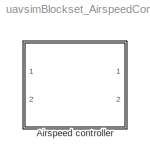
MODEL uavsimBlockset_AirspeedController
KIND library
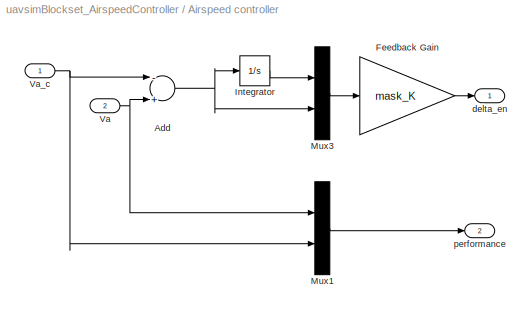
BLOCK [SubSystem] Airspeed controller
  FunctionWithSeparateData = off
  MaskHideContents = off
  MinAlgLoopOccurrences = off
  Opaque = off
  Ports = [2, 2]
  PropExecContextOutsideSubsystem = off
  RTWSystemCode = Auto
  RequestExecContextInheritance = off
  SID = 2218
BLOCK [Sum] Airspeed controller/Add
  InputSameDT = off
  Inputs = -+
  OutDataTypeStr = Inherit: Inherit via internal rule
  Ports = [2, 1]
  SID = 2231
  SaturateOnIntegerOverflow = off
BLOCK [Gain] Airspeed controller/Feedback Gain
  Gain = mask_K
  Multiplication = Matrix(K*u)
  OutDataTypeStr = Inherit: Inherit via internal rule
  ParamDataTypeStr = Inherit: Inherit via internal rule
  SID = 2223
  SaturateOnIntegerOverflow = off
BLOCK [Integrator] Airspeed controller/Integrator
  Ports = [1, 1]
  SID = 2224
BLOCK [Mux] Airspeed controller/Mux1
  DisplayOption = bar
  Inputs = 2
  Ports = [2, 1]
  SID = 2254
BLOCK [Mux] Airspeed controller/Mux3
  DisplayOption = bar
  Inputs = 2
  Ports = [2, 1]
  SID = 2232
BLOCK [Inport] Airspeed controller/Va
  IconDisplay = Port number
  Port = 2
  SID = 2220
BLOCK [Inport] Airspeed controller/Va_c
  IconDisplay = Port number
  SID = 2219
BLOCK [Outport] Airspeed controller/delta_en
  IconDisplay = Port number
  SID = 2228
BLOCK [Outport] Airspeed controller/performance
  IconDisplay = Port number
  Port = 2
  SID = 2253
NET Airspeed controller/Add:1 -> Airspeed controller/Integrator:1, Airspeed controller/Mux3:2
LINE Airspeed controller/Feedback Gain:1 -> Airspeed controller/delta_en:1
LINE Airspeed controller/Integrator:1 -> Airspeed controller/Mux3:1
LINE Airspeed controller/Mux1:1 -> Airspeed controller/performance:1
LINE Airspeed controller/Mux3:1 -> Airspeed controller/Feedback Gain:1
NET Airspeed controller/Va:1 -> Airspeed controller/Add:2, Airspeed controller/Mux1:1
NET Airspeed controller/Va_c:1 -> Airspeed controller/Add:1, Airspeed controller/Mux1:2
note: NET lines group one-source signal fan-out (src -> all destinations, sorted); 1:1 wires keep LINE
